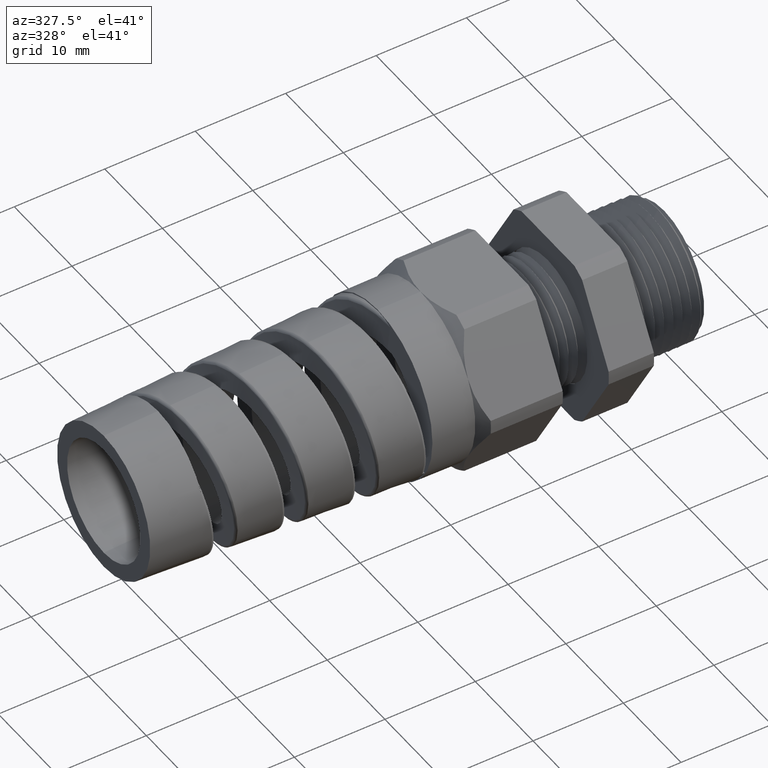
[diagram: clean part render]
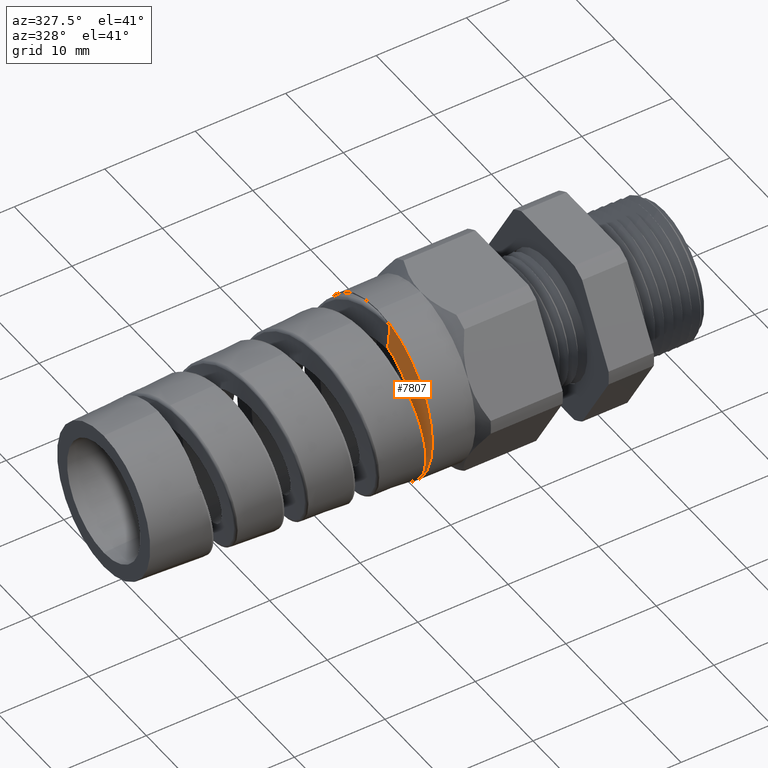
[diagram: same view with one face highlighted and labeled with its STEP entity id]
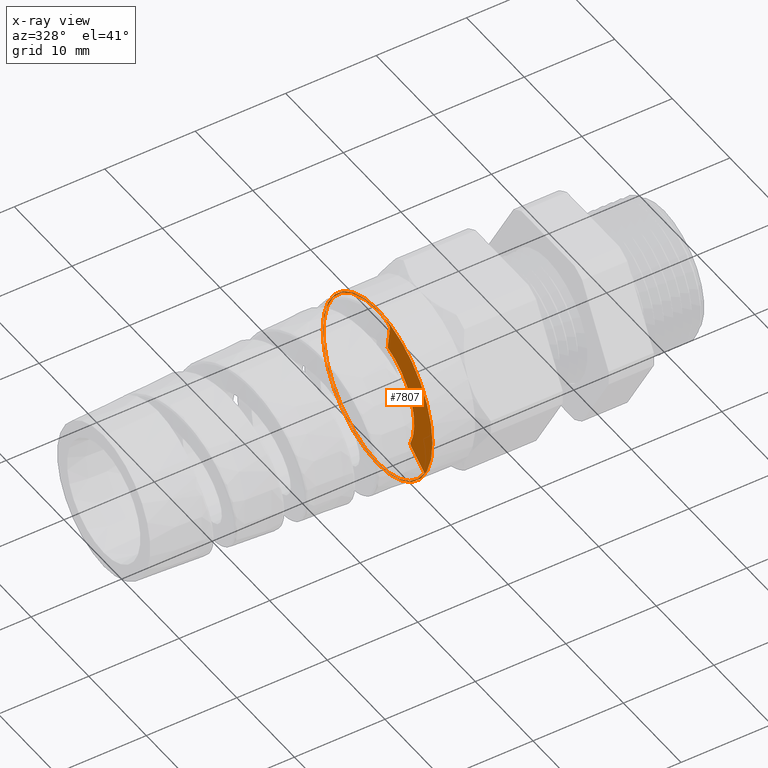
[diagram: x-ray of the same camera — body ghosted, the highlighted face saturated]
A machine part, auxiliary view. The second image highlights one B-rep face of the part: STEP entity #7807.
The next image is the same camera in x-ray: the body ghosted, the highlighted face saturated — about 5% of this face is hidden behind the body in this view.
In plain terms, the highlighted planar face has unit normal (-1, 0, 0).
Its self-contained STEP definition (entity closure, byte-faithful):
#390 = EDGE_CURVE ( 'NONE', #7556, #7290, #1186, .T. ) ;
#417 = VERTEX_POINT ( 'NONE', #1256 ) ;
#433 = VERTEX_POINT ( 'NONE', #1281 ) ;
#435 = EDGE_CURVE ( 'NONE', #7566, #433, #1334, .T. ) ;
#487 = EDGE_CURVE ( 'NONE', #7427, #417, #1344, .T. ) ;
#1184 = CARTESIAN_POINT ( 'NONE',  ( -1.248060804240437700, 0.0000000000000000000, 0.0000000000000000000 ) ) ;
#1185 = AXIS2_PLACEMENT_3D ( 'NONE', #1184, #1189, #1242 ) ;
#1186 = CIRCLE ( 'NONE', #1185, 0.3749999999999999400 ) ;
#1189 = DIRECTION ( 'NONE',  ( -1.000000000000000000, 0.0000000000000000000, 0.0000000000000000000 ) ) ;
#1242 = DIRECTION ( 'NONE',  ( 0.0000000000000000000, 0.0000000000000000000, 1.000000000000000000 ) ) ;
#1256 = CARTESIAN_POINT ( 'NONE',  ( -1.248060804240437700, -0.3117780569564458900, -0.1800051451112433800 ) ) ;
#1276 = CARTESIAN_POINT ( 'NONE',  ( -1.248060804240437700, 0.0000000000000000000, 0.0000000000000000000 ) ) ;
#1281 = CARTESIAN_POINT ( 'NONE',  ( -1.248060804240484800, -0.01345516010218992700, 0.3700374184897830000 ) ) ;
#1283 = DIRECTION ( 'NONE',  ( 1.000000000000000000, 0.0000000000000000000, 0.0000000000000000000 ) ) ;
#1332 = DIRECTION ( 'NONE',  ( 0.0000000000000000000, 0.0000000000000000000, 1.000000000000000000 ) ) ;
#1333 = AXIS2_PLACEMENT_3D ( 'NONE', #1276, #1283, #1332 ) ;
#1334 = CIRCLE ( 'NONE', #1333, 0.3702819633954101400 ) ;
#1337 = DIRECTION ( 'NONE',  ( 0.0000000000000000000, 0.8660254037844135100, 0.5000000000000433000 ) ) ;
#1338 = VECTOR ( 'NONE', #1337, 39.37007874015748900 ) ;
#1339 = CARTESIAN_POINT ( 'NONE',  ( -1.248060804240437700, -0.02267767330042180100, -0.01309296078459443000 ) ) ;
#1344 = LINE ( 'NONE', #1339, #1338 ) ;
#2130 = DIRECTION ( 'NONE',  ( 0.0000000000000000000, 1.776356839400250500E-015, 1.000000000000000000 ) ) ;
#2131 = DIRECTION ( 'NONE',  ( 1.000000000000000000, 0.0000000000000000000, 0.0000000000000000000 ) ) ;
#2132 = CARTESIAN_POINT ( 'NONE',  ( -1.248060804240437700, 0.0000000000000000000, 0.0000000000000000000 ) ) ;
#2133 = AXIS2_PLACEMENT_3D ( 'NONE', #2132, #2131, #2130 ) ;
#2134 = CIRCLE ( 'NONE', #2133, 0.3702819633954101400 ) ;
#2711 = DIRECTION ( 'NONE',  ( 0.0000000000000000000, 0.0000000000000000000, 1.000000000000000000 ) ) ;
#2712 = DIRECTION ( 'NONE',  ( -1.000000000000000000, 0.0000000000000000000, 0.0000000000000000000 ) ) ;
#2713 = CARTESIAN_POINT ( 'NONE',  ( -1.248060804240437700, 0.0000000000000000000, 0.0000000000000000000 ) ) ;
#2714 = AXIS2_PLACEMENT_3D ( 'NONE', #2713, #2712, #2711 ) ;
#2729 = CIRCLE ( 'NONE', #2714, 0.3749999999999999400 ) ;
#2733 = CARTESIAN_POINT ( 'NONE',  ( -1.248060804240437700, 4.592425496802575500E-017, 0.3749999999999999400 ) ) ;
#2740 = CIRCLE ( 'NONE', #3793, 0.3702819633954101400 ) ;
#2894 = DIRECTION ( 'NONE',  ( 1.000000000000000000, 0.0000000000000000000, 0.0000000000000000000 ) ) ;
#2895 = DIRECTION ( 'NONE',  ( 0.0000000000000000000, 0.0000000000000000000, 1.000000000000000000 ) ) ;
#2939 = CARTESIAN_POINT ( 'NONE',  ( -1.248060804240437700, 0.0000000000000000000, 0.0000000000000000000 ) ) ;
#3135 = EDGE_CURVE ( 'NONE', #7427, #7553, #2134, .T. ) ;
#3742 = CARTESIAN_POINT ( 'NONE',  ( -1.248060804240438000, -0.3206735868635956500, -0.1851409816977212000 ) ) ;
#3793 = AXIS2_PLACEMENT_3D ( 'NONE', #2939, #2894, #2895 ) ;
#4061 = CARTESIAN_POINT ( 'NONE',  ( -1.248060804240437700, 4.534646212541864600E-017, 0.3702819633954102000 ) ) ;
#4082 = CARTESIAN_POINT ( 'NONE',  ( -1.248060804240437700, 0.0000000000000000000, -0.3749999999999999400 ) ) ;
#4083 = CARTESIAN_POINT ( 'NONE',  ( -1.248060804240437700, 0.0000000000000000000, -0.3702819633954102000 ) ) ;
#4481 = CARTESIAN_POINT ( 'NONE',  ( -1.248060804240437700, -0.2825648958209549500, -0.1575931246869933500 ) ) ;
#4482 = CARTESIAN_POINT ( 'NONE',  ( -1.248060804240437700, -0.2525142728380832000, -0.1363777913320579900 ) ) ;
#4483 = CARTESIAN_POINT ( 'NONE',  ( -1.248060804240437700, -0.2216197266339908200, -0.1163683779954540300 ) ) ;
#4484 = B_SPLINE_CURVE_WITH_KNOTS ( 'NONE', 3,
 ( #4483, #4482, #4481, #4531 ),
 .UNSPECIFIED., .F., .F.,
 ( 4, 4 ),
 ( 0.0002827186814565168700, 0.003085705658068857400 ),
 .UNSPECIFIED. ) ;
#4491 = CARTESIAN_POINT ( 'NONE',  ( -1.248060804240437700, -0.2216197266339908200, -0.1163683779954540300 ) ) ;
#4525 = CARTESIAN_POINT ( 'NONE',  ( -1.248060804240437700, -0.06887924918031423900, 0.2406502683625637000 ) ) ;
#4526 = CARTESIAN_POINT ( 'NONE',  ( -1.248060804240438000, -0.07579382507077249400, 0.2771001547351915100 ) ) ;
#4527 = CARTESIAN_POINT ( 'NONE',  ( -1.248060804240437700, -0.08122962249573544000, 0.3137754952675675900 ) ) ;
#4528 = CARTESIAN_POINT ( 'NONE',  ( -1.248060804240437700, -0.08519874028017247700, 0.3506744453761517200 ) ) ;
#4530 = B_SPLINE_CURVE_WITH_KNOTS ( 'NONE', 3,
 ( #4528, #4527, #4526, #4525 ),
 .UNSPECIFIED., .F., .F.,
 ( 4, 4 ),
 ( 5.750746862836173300E-005, 0.002882673003177650900 ),
 .UNSPECIFIED. ) ;
#4531 = CARTESIAN_POINT ( 'NONE',  ( -1.248060804240437700, -0.3117780569564458900, -0.1800051451112433800 ) ) ;
#5442 = B_SPLINE_CURVE_WITH_KNOTS ( 'NONE', 3,
 ( #5458, #5457, #5456, #5455, #5454, #5453, #5452, #5451, #5450, #5449, #5448, #5447, #5446, #5445 ),
 .UNSPECIFIED., .F., .F.,
 ( 4, 2, 2, 2, 2, 2, 4 ),
 ( 7.047314121155778800E-019, 0.0009656230568462283300, 0.001448434585269341600, 0.001689840349480899900, 0.001810543231586676900, 0.001870894672639566100, 0.001931246113692455200 ),
 .UNSPECIFIED. ) ;
#5445 = CARTESIAN_POINT ( 'NONE',  ( -1.248060804240437700, -0.08519874028017247700, 0.3506744453761517200 ) ) ;
#5446 = CARTESIAN_POINT ( 'NONE',  ( -1.248060804240437700, -0.08528475121072384700, 0.3514740470024194700 ) ) ;
#5447 = CARTESIAN_POINT ( 'NONE',  ( -1.248060804240438000, -0.08472600516925742100, 0.3521831166008506700 ) ) ;
#5448 = CARTESIAN_POINT ( 'NONE',  ( -1.248060804240437700, -0.08363455308387120200, 0.3533251470649612100 ) ) ;
#5449 = CARTESIAN_POINT ( 'NONE',  ( -1.248060804240438000, -0.08300529306423075300, 0.3538165132558839200 ) ) ;
#5450 = CARTESIAN_POINT ( 'NONE',  ( -1.248060804240437700, -0.08105794289616880000, 0.3551825130542388100 ) ) ;
#5451 = CARTESIAN_POINT ( 'NONE',  ( -1.248060804240438000, -0.07966307943012757000, 0.3559500127788288200 ) ) ;
#5452 = CARTESIAN_POINT ( 'NONE',  ( -1.248060804240438000, -0.07540900339532501100, 0.3580780623367630400 ) ) ;
#5453 = CARTESIAN_POINT ( 'NONE',  ( -1.248060804240438000, -0.07245542362108932400, 0.3592533286403104500 ) ) ;
#5454 = CARTESIAN_POINT ( 'NONE',  ( -1.248060804240437700, -0.06348998549876269700, 0.3624356500678214100 ) ) ;
#5455 = CARTESIAN_POINT ( 'NONE',  ( -1.248060804240437100, -0.05735400392665142300, 0.3640753406582529200 ) ) ;
#5456 = CARTESIAN_POINT ( 'NONE',  ( -1.248060804240438200, -0.03875790540751901400, 0.3681085267087851300 ) ) ;
#5457 = CARTESIAN_POINT ( 'NONE',  ( -1.248060804240484600, -0.02613124999046170100, 0.3695764953225733600 ) ) ;
#5458 = CARTESIAN_POINT ( 'NONE',  ( -1.248060804240484800, -0.01345516010218992700, 0.3700374184897830000 ) ) ;
#6541 = CARTESIAN_POINT ( 'NONE',  ( -1.248060804240437700, -0.06887924918031423900, 0.2406502683625637000 ) ) ;
#6542 = CARTESIAN_POINT ( 'NONE',  ( -1.248060804240437700, -0.08519874028017247700, 0.3506744453761517200 ) ) ;
#6543 = DIRECTION ( 'NONE',  ( 0.0000000000000000000, 0.0000000000000000000, 1.000000000000000000 ) ) ;
#6544 = DIRECTION ( 'NONE',  ( -1.000000000000000000, 0.0000000000000000000, 0.0000000000000000000 ) ) ;
#6545 = CARTESIAN_POINT ( 'NONE',  ( -1.248060804240437700, 0.0000000000000000000, 0.0000000000000000000 ) ) ;
#6546 = AXIS2_PLACEMENT_3D ( 'NONE', #6545, #6544, #6543 ) ;
#6547 = PLANE ( 'NONE',  #6546 ) ;
#6548 = FACE_OUTER_BOUND ( 'NONE', #7397, .T. ) ;
#6549 = FACE_BOUND ( 'NONE', #7804, .T. ) ;
#6550 = DIRECTION ( 'NONE',  ( 0.0000000000000000000, 0.0000000000000000000, 1.000000000000000000 ) ) ;
#6551 = DIRECTION ( 'NONE',  ( -1.000000000000000000, 0.0000000000000000000, 0.0000000000000000000 ) ) ;
#6552 = CARTESIAN_POINT ( 'NONE',  ( -1.248060804240437700, 0.0000000000000000000, 0.0000000000000000000 ) ) ;
#6553 = AXIS2_PLACEMENT_3D ( 'NONE', #6552, #6551, #6550 ) ;
#6554 = CIRCLE ( 'NONE', #6553, 0.2503136085605768800 ) ;
#7290 = VERTEX_POINT ( 'NONE', #2733 ) ;
#7294 = EDGE_CURVE ( 'NONE', #7290, #7556, #2729, .T. ) ;
#7395 = ORIENTED_EDGE ( 'NONE', *, *, #7294, .T. ) ;
#7397 = EDGE_LOOP ( 'NONE', ( #7398, #7395 ) ) ;
#7398 = ORIENTED_EDGE ( 'NONE', *, *, #390, .T. ) ;
#7404 = ORIENTED_EDGE ( 'NONE', *, *, #7827, .T. ) ;
#7405 = ORIENTED_EDGE ( 'NONE', *, *, #7794, .T. ) ;
#7408 = ORIENTED_EDGE ( 'NONE', *, *, #435, .T. ) ;
#7411 = ORIENTED_EDGE ( 'NONE', *, *, #7567, .T. ) ;
#7417 = ORIENTED_EDGE ( 'NONE', *, *, #3135, .T. ) ;
#7427 = VERTEX_POINT ( 'NONE', #3742 ) ;
#7440 = ORIENTED_EDGE ( 'NONE', *, *, #487, .F. ) ;
#7444 = ORIENTED_EDGE ( 'NONE', *, *, #7823, .T. ) ;
#7553 = VERTEX_POINT ( 'NONE', #4083 ) ;
#7556 = VERTEX_POINT ( 'NONE', #4082 ) ;
#7566 = VERTEX_POINT ( 'NONE', #4061 ) ;
#7567 = EDGE_CURVE ( 'NONE', #7553, #7566, #2740, .T. ) ;
#7794 = EDGE_CURVE ( 'NONE', #433, #7815, #5442, .T. ) ;
#7799 = EDGE_CURVE ( 'NONE', #7822, #7816, #6554, .T. ) ;
#7803 = ORIENTED_EDGE ( 'NONE', *, *, #7799, .F. ) ;
#7804 = EDGE_LOOP ( 'NONE', ( #7803, #7444, #7440, #7417, #7411, #7408, #7405, #7404 ) ) ;
#7807 = ADVANCED_FACE ( 'NONE', ( #6549, #6548 ), #6547, .T. ) ;
#7815 = VERTEX_POINT ( 'NONE', #6542 ) ;
#7816 = VERTEX_POINT ( 'NONE', #6541 ) ;
#7822 = VERTEX_POINT ( 'NONE', #4491 ) ;
#7823 = EDGE_CURVE ( 'NONE', #7822, #417, #4484, .T. ) ;
#7827 = EDGE_CURVE ( 'NONE', #7815, #7816, #4530, .T. ) ;